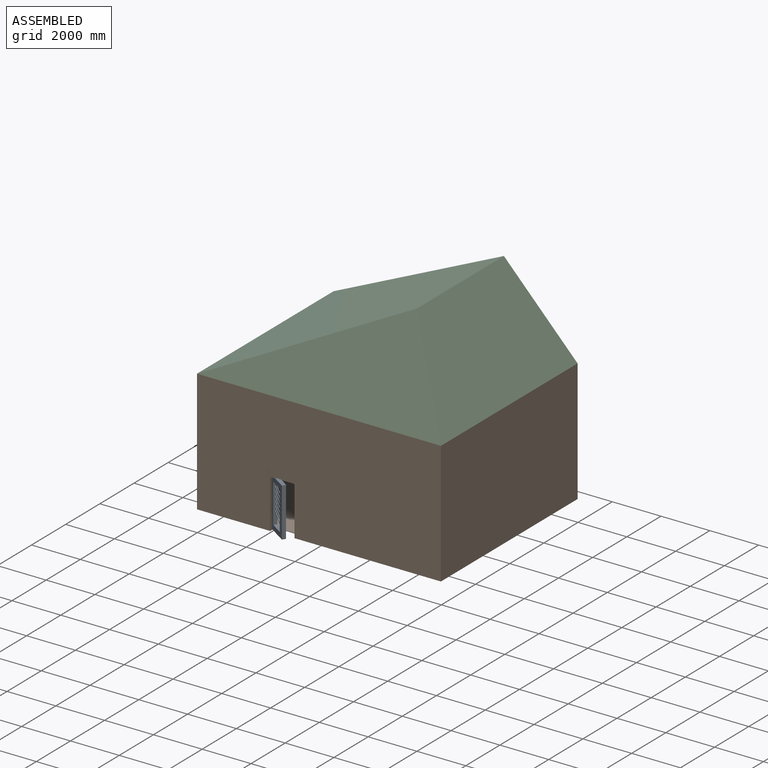
[diagram: assembled view]
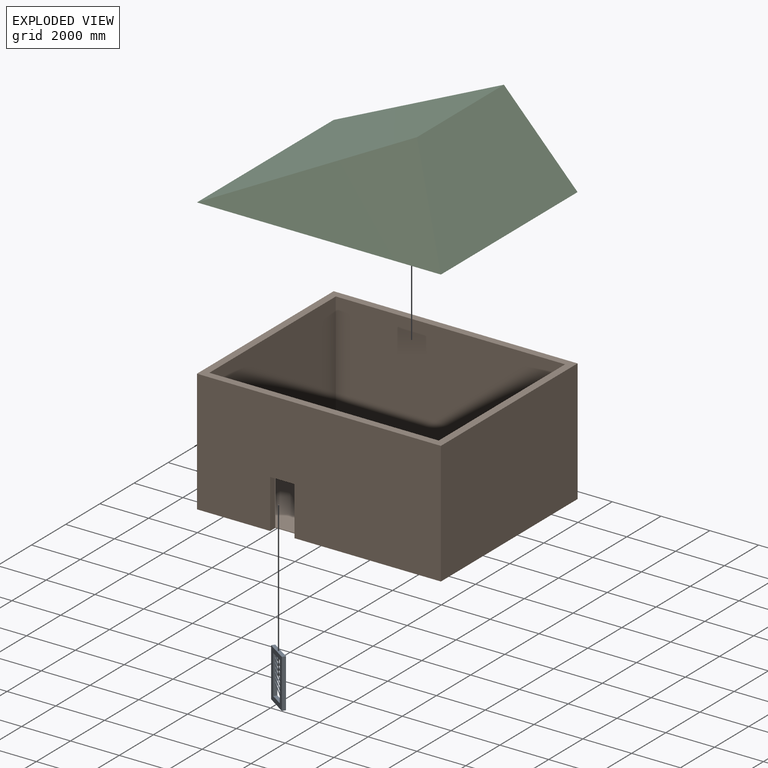
[diagram: exploded view]
GUIDED TOUR — MATED ASSEMBLY (Onshape document 355c7e82cdebf4fe1328f168, AutoMate assembly 355c7e82cdebf4fe1328f168_9fa5b39d5db73065056a9150_e65024e5a021f3d0e8b08cea_default)

This assembly has 3 components, labeled P0..P2 below (a component is one placed occurrence of a part; the same part can appear more than once), held together by 2 mates. A mate is a constraint between two components; its type names the relative motion it leaves free:
  FASTENED — locks the two components together rigidly (no relative motion),
  REVOLUTE — leaves rotation about the listed axis free (a hinge).
Axis/direction vectors are unit vectors and 'through' points are millimeter coordinates, both in the assembly's world frame.

MATES
  1. REVOLUTE "Revolute 1": P0 <-> P1, axis (0.000, 0.000, 1.000) through (-2005.65, -3714.49, 25.00) mm
  2. FASTENED "Fastened 2": P2 <-> P1, direction (0.000, 0.000, -1.000) through (-5005.65, -4014.49, 5025.00) mm

ASSEMBLY ORDER
  1. P1 — the base component [order verified]
  2. P0 [order verified]
  3. P2 [order verified]
Order-tag legend:
  [order verified] — this step's position reverses a verified removal order: the component was checked to insert without passing through the ones already placed.

Of the 3 components, 3 carry the full construction recipe — the FeatureScript program that regenerates the part's solid from scratch; the rest are supplied as boundary geometry only.
Each toured component is shown spotlighted twice — in the assembled view, then in the exploded view, where a leader line traces a displaced component back to its assembled socket (saturated green if recipe-attached, orange if geometry-only; every other component desaturated gray) — followed by its recipe or geometry summary and the mates that hold it.
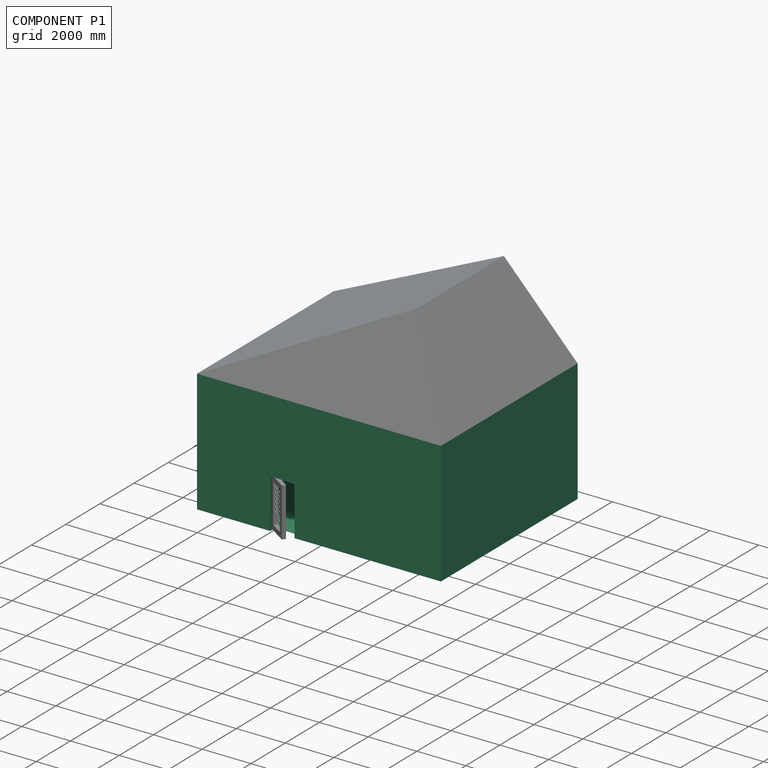
[diagram: component P1 — assembled]
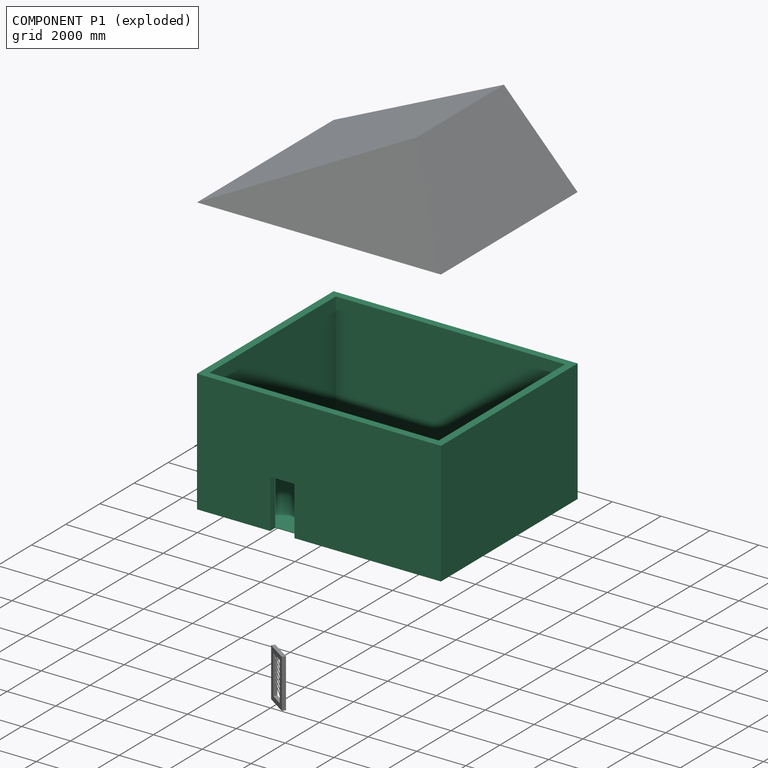
[diagram: component P1 — exploded]
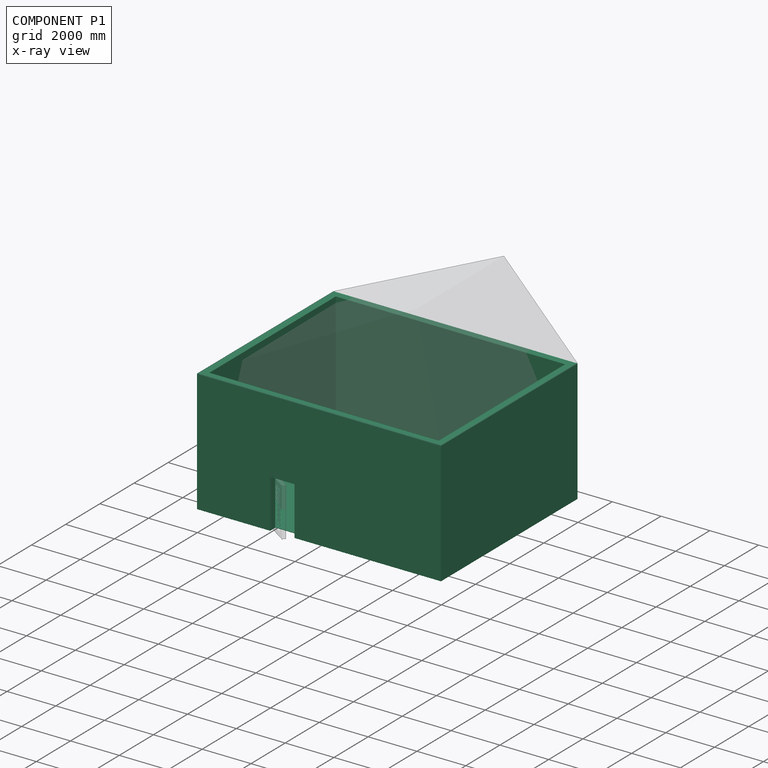
[diagram: component P1 — x-ray view]
COMPONENT P1 — recipe-attached (CADFS 00117687, mesh-verified: the recipe's output STEP matches this component's geometry to below the mesh-comparison resolution (tessellation chordal tolerance ~20.6 mm)).
Held by: REVOLUTE mate "Revolute 1" to P0; FASTENED mate "Fastened 2" to P2.
Construction recipe (FeatureScript — the CAD program that rebuilds this solid; sketch coordinates are in the units given by the * unit suffixes, e.g. mm):

FeatureScript 1511;
import(path : "onshape/std/geometry.fs", version : "1511.0");
import(path : "onshape/std/common.fs", version : "1511.0");
const mm = millimeter;
const VERTEX = EntityType.VERTEX;
const EDGE = EntityType.EDGE;
const FACE = EntityType.FACE;
const BODY = EntityType.BODY;
function v(x, y){return vector(x, y);}
function OD(order){return orderDisambiguation(order);}
function OSD(set){return originalSetDisambiguation(set);}
function TD(topology){return topologyDisambiguation(topology);}
function TDD(query){return trueDependencyDisambiguation(query);}
function sQuery(a, b, c) {return sketchEntityQuery(a, b, c);}

annotation { "Feature Type Name" : "Feature", "Feature Type Description" : "" }
export const myFeature = defineFeature(function(context is Context, id is Id, definition is map)
    precondition{}
    {
        {
            var Q0;
            Q0=qCreatedBy(makeId("Top.planeOp"),FACE);
            var sketch = newSketch(context, id + "F0", { "sketchPlane" : qUnion([Q0])});
            skLineSegment(sketch, "E0.bottom", {"start": v(5000, -4000) * mm, "end": v(-5000, -4000) * mm});
            skLineSegment(sketch, "E0.top", {"start": v(5000, 4000) * mm, "end": v(-5000, 4000) * mm});
            skLineSegment(sketch, "E0.left", {"start": v(5000, -4000) * mm, "end": v(5000, 4000) * mm});
            skLineSegment(sketch, "E0.right", {"start": v(-5000, -4000) * mm, "end": v(-5000, 4000) * mm});
            skPoint(sketch, "E0.middle", {"position": v(0, 0) * mm});
            skSolve(sketch);
        }
        {
            var Q0;
            Q0=makeQuery(id+"F0.imprint","IMPRINT",FACE,{"disambiguationData":[TD([[makeQuery(id+"F0.imprint","IMPRINT",EDGE,{"derivedFrom":sQuery(id+"F0.wireOp",EDGE,"E0.bottom")}),-1.0]])]});
            extrude(context, id + "F1", {"entities" : qUnion([Q0]), "depth" : 25 * mm});
        }
        {
            var Q0;
            Q0=makeQuery(id+"F1.opExtrude","CAP_FACE",FACE,{"disambiguationData":[OSD([sQuery(id+"F0.wireOp",EDGE,"E0.bottom"),sQuery(id+"F0.wireOp",EDGE,"E0.top"),sQuery(id+"F0.wireOp",EDGE,"E0.left"),sQuery(id+"F0.wireOp",EDGE,"E0.right")])],"isStart":false});
            var sketch = newSketch(context, id + "F2", { "sketchPlane" : qUnion([Q0])});
            skLineSegment(sketch, "E1.bottom", {"start": v(4700, -3700) * mm, "end": v(-4700, -3700) * mm});
            skLineSegment(sketch, "E1.top", {"start": v(4700, 3700) * mm, "end": v(-4700, 3700) * mm});
            skLineSegment(sketch, "E1.left", {"start": v(4700, -3700) * mm, "end": v(4700, 3700) * mm});
            skLineSegment(sketch, "E1.right", {"start": v(-4700, -3700) * mm, "end": v(-4700, 3700) * mm});
            skPoint(sketch, "E1.middle", {"position": v(0, 0) * mm});
            skSolve(sketch);
        }
        {
            var Q0;
            Q0=makeQuery(id+"F2.imprint","IMPRINT",FACE,{"disambiguationData":[TD([[makeQuery(id+"F2.imprint","IMPRINT",EDGE,{"derivedFrom":sQuery(id+"F2.wireOp",EDGE,"E1.bottom")}),1.0]])]});
            extrude(context, id + "F3", {"entities" : qUnion([Q0]), "operationType" : NewBodyOperationType.ADD, "depth" : 5000 * mm});
        }
        {
            var Q0;
            {var subQ0=sQuery(id+"F0.wireOp",EDGE,"E0.bottom");Q0=makeQuery(id+"F3.boolean.opBoolean","MERGE",FACE,{"derivedFrom":[makeQuery(id+"F1.opExtrude","SWEPT_FACE",FACE,{"disambiguationData":[OSD([subQ0])]}),makeQuery(id+"F3.opExtrude","SWEPT_FACE",FACE,{"disambiguationData":[OSD([subQ0])]})]});}
            var sketch = newSketch(context, id + "F4", { "sketchPlane" : qUnion([Q0])});
            skLineSegment(sketch, "E2.bottom", {"start": v(-2000, 0) * mm, "end": v(-1000, 0) * mm});
            skLineSegment(sketch, "E2.top", {"start": v(-2000, 2000) * mm, "end": v(-1000, 2000) * mm});
            skLineSegment(sketch, "E2.left", {"start": v(-2000, 0) * mm, "end": v(-2000, 2000) * mm});
            skLineSegment(sketch, "E2.right", {"start": v(-1000, 0) * mm, "end": v(-1000, 2000) * mm});
            skSolve(sketch);
        }
        {
            var Q0;
            Q0=makeQuery(id+"F4.imprint","IMPRINT",FACE,{"disambiguationData":[TD([[makeQuery(id+"F4.imprint","IMPRINT",EDGE,{"derivedFrom":sQuery(id+"F4.wireOp",EDGE,"E2.bottom")}),-1.0]])]});
            var Q1;
            Q1=makeQuery(id+"F3.opExtrude","SWEPT_FACE",FACE,{"disambiguationData":[OSD([sQuery(id+"F2.wireOp",EDGE,"E1.bottom")])]});
            extrude(context, id + "F5", {"entities" : qUnion([Q0]), "operationType" : NewBodyOperationType.REMOVE, "endBound" : BoundingType.UP_TO_SURFACE, "oppositeDirection" : true, "endBoundEntityFace" : qUnion([Q1]), "depth" : 25 * mm});
        }
    });
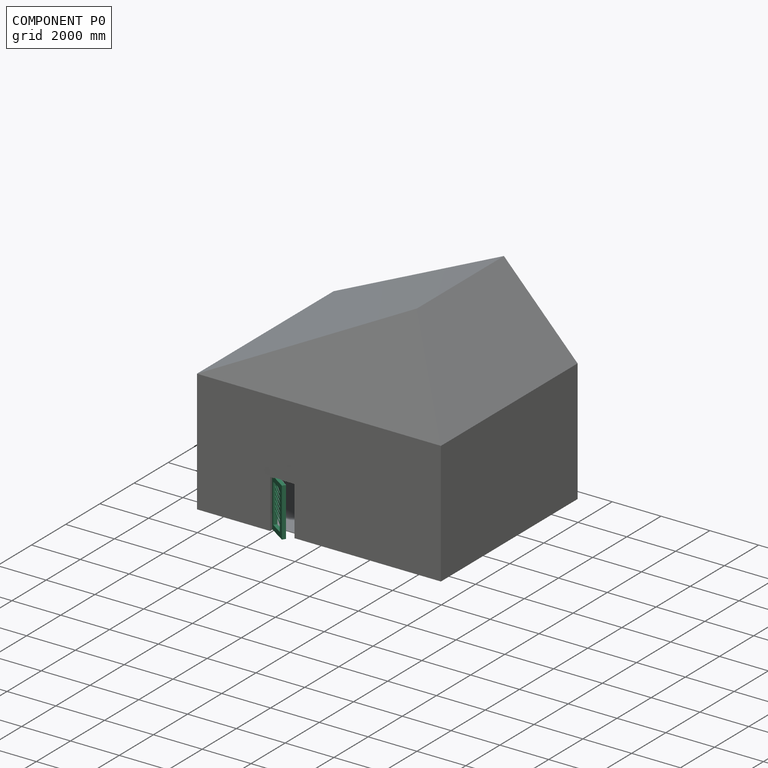
[diagram: component P0 — assembled]
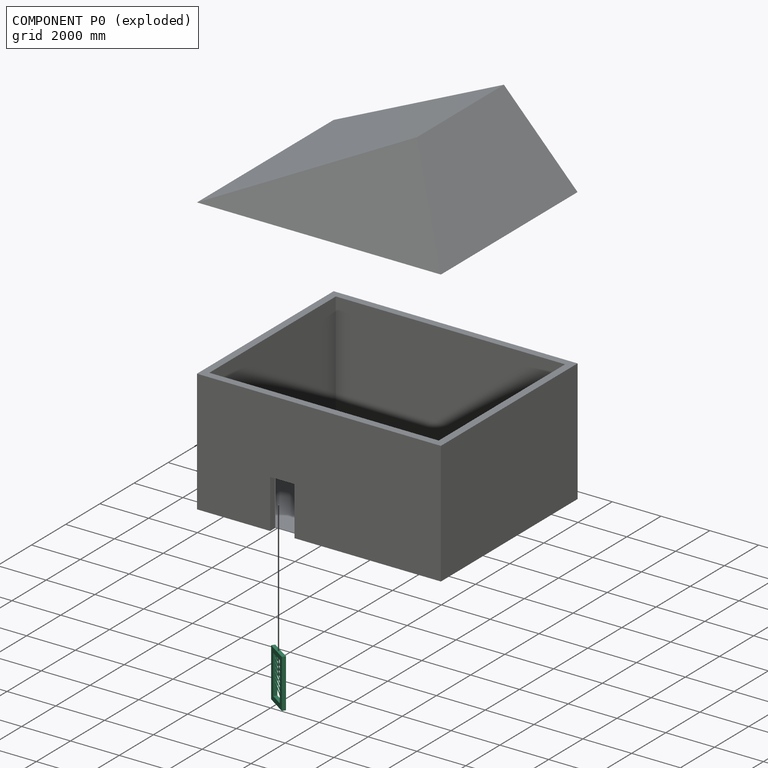
[diagram: component P0 — exploded]
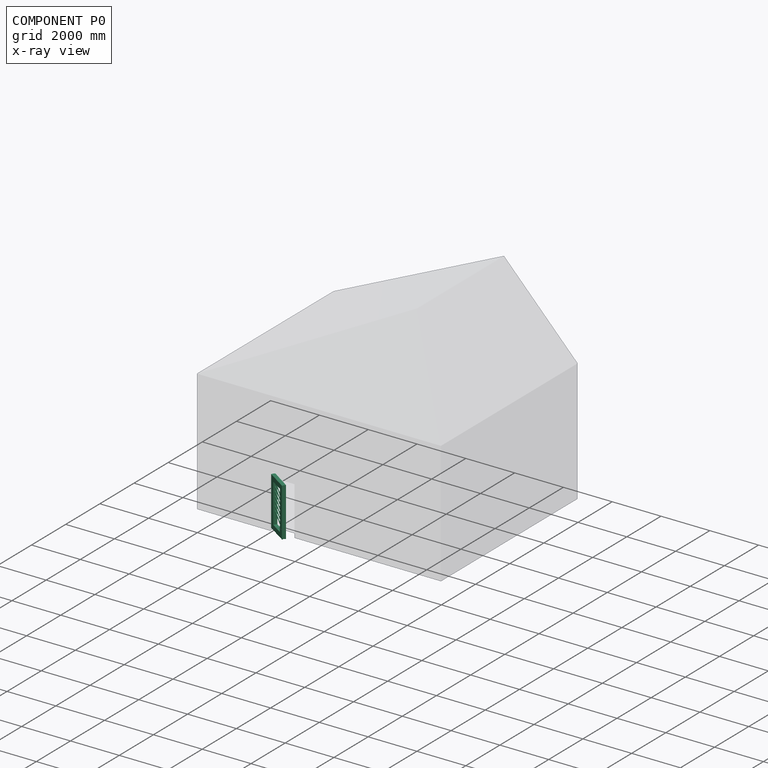
[diagram: component P0 — x-ray view]
COMPONENT P0 — recipe-attached (CADFS 00117688, mesh-verified: the recipe's output STEP matches this component's geometry to below the mesh-comparison resolution (tessellation chordal tolerance ~3.36 mm)).
Held by: REVOLUTE mate "Revolute 1" to P1.
Construction recipe (FeatureScript — the CAD program that rebuilds this solid; sketch coordinates are in the units given by the * unit suffixes, e.g. mm):

FeatureScript 1511;
import(path : "onshape/std/geometry.fs", version : "1511.0");
import(path : "onshape/std/common.fs", version : "1511.0");
const mm = millimeter;
const VERTEX = EntityType.VERTEX;
const EDGE = EntityType.EDGE;
const FACE = EntityType.FACE;
const BODY = EntityType.BODY;
function v(x, y){return vector(x, y);}
function OD(order){return orderDisambiguation(order);}
function OSD(set){return originalSetDisambiguation(set);}
function TD(topology){return topologyDisambiguation(topology);}
function TDD(query){return trueDependencyDisambiguation(query);}
function sQuery(a, b, c) {return sketchEntityQuery(a, b, c);}

annotation { "Feature Type Name" : "Feature", "Feature Type Description" : "" }
export const myFeature = defineFeature(function(context is Context, id is Id, definition is map)
    precondition{}
    {
        {
            var Q0;
            Q0=qCreatedBy(makeId("Front.planeOp"),FACE);
            var sketch = newSketch(context, id + "F0", { "sketchPlane" : qUnion([Q0])});
            skLineSegment(sketch, "E0.bottom", {"start": v(0, 0) * mm, "end": v(1000, 0) * mm});
            skLineSegment(sketch, "E0.top", {"start": v(0, 2000) * mm, "end": v(1000, 2000) * mm});
            skLineSegment(sketch, "E0.left", {"start": v(0, 0) * mm, "end": v(0, 2000) * mm});
            skLineSegment(sketch, "E0.right", {"start": v(1000, 0) * mm, "end": v(1000, 2000) * mm});
            skLineSegment(sketch, "E1.bottom", {"start": v(200, 200) * mm, "end": v(800, 200) * mm});
            skLineSegment(sketch, "E1.top", {"start": v(200, 1800) * mm, "end": v(800, 1800) * mm});
            skLineSegment(sketch, "E1.left", {"start": v(200, 200) * mm, "end": v(200, 1800) * mm});
            skLineSegment(sketch, "E1.right", {"start": v(800, 200) * mm, "end": v(800, 1800) * mm});
            skSolve(sketch);
        }
        {
            var Q0;
            Q0=makeQuery(id+"F0.imprint","IMPRINT",FACE,{"disambiguationData":[TD([[makeQuery(id+"F0.imprint","IMPRINT",EDGE,{"derivedFrom":sQuery(id+"F0.wireOp",EDGE,"E0.bottom")}),1.0]])]});
            extrude(context, id + "F1", {"entities" : qUnion([Q0]), "endBound" : BoundingType.SYMMETRIC, "depth" : 150 * mm});
        }
        {
            var Q0;
            Q0=qCreatedBy(makeId("Front.planeOp"),FACE);
            var sketch = newSketch(context, id + "F2", { "sketchPlane" : qUnion([Q0])});
            skLineSegment(sketch, "E2.0", {"start": v(200, 200) * mm, "end": v(200, 1800) * mm});
            skLineSegment(sketch, "E2.1", {"start": v(200, 1800) * mm, "end": v(800, 1800) * mm});
            skLineSegment(sketch, "E2.2", {"start": v(800, 200) * mm, "end": v(800, 1800) * mm});
            skLineSegment(sketch, "E2.3", {"start": v(200, 200) * mm, "end": v(800, 200) * mm});
            skLineSegment(sketch, "E3", {"start": v(200, 1750) * mm, "end": v(800, 1380) * mm});
            skLineSegment(sketch, "E4", {"start": v(800, 1430) * mm, "end": v(800, 1380) * mm});
            skLineSegment(sketch, "E5", {"start": v(800, 1430) * mm, "end": v(200, 1800) * mm});
            skLineSegment(sketch, "E6", {"start": v(200, 1750) * mm, "end": v(200, 1800) * mm});
            skLineSegment(sketch, "E7.1.0.0", {"start": v(200, 1570) * mm, "end": v(800, 1200) * mm});
            skLineSegment(sketch, "E7.1.0.1", {"start": v(800, 1250) * mm, "end": v(800, 1200) * mm});
            skLineSegment(sketch, "E7.1.0.2", {"start": v(200, 1570) * mm, "end": v(200, 1620) * mm});
            skLineSegment(sketch, "E7.1.0.3", {"start": v(800, 1250) * mm, "end": v(200, 1620) * mm});
            skLineSegment(sketch, "E7.2.0.0", {"start": v(200, 1390) * mm, "end": v(800, 1020) * mm});
            skLineSegment(sketch, "E7.2.0.1", {"start": v(800, 1070) * mm, "end": v(800, 1020) * mm});
            skLineSegment(sketch, "E7.2.0.2", {"start": v(200, 1390) * mm, "end": v(200, 1440) * mm});
            skLineSegment(sketch, "E7.2.0.3", {"start": v(800, 1070) * mm, "end": v(200, 1440) * mm});
            skLineSegment(sketch, "E7.3.0.0", {"start": v(200, 1210) * mm, "end": v(800, 840) * mm});
            skLineSegment(sketch, "E7.3.0.1", {"start": v(800, 890) * mm, "end": v(800, 840) * mm});
            skLineSegment(sketch, "E7.3.0.2", {"start": v(200, 1210) * mm, "end": v(200, 1260) * mm});
            skLineSegment(sketch, "E7.3.0.3", {"start": v(800, 890) * mm, "end": v(200, 1260) * mm});
            skLineSegment(sketch, "E7.4.0.0", {"start": v(200, 1030) * mm, "end": v(800, 660) * mm});
            skLineSegment(sketch, "E7.4.0.1", {"start": v(800, 710) * mm, "end": v(800, 660) * mm});
            skLineSegment(sketch, "E7.4.0.2", {"start": v(200, 1030) * mm, "end": v(200, 1080) * mm});
            skLineSegment(sketch, "E7.4.0.3", {"start": v(800, 710) * mm, "end": v(200, 1080) * mm});
            skLineSegment(sketch, "E7.direction1", {"start": v(200, 1800) * mm, "end": v(200, 1620) * mm, "construction": true});
            skLineSegment(sketch, "E8.0.5.0", {"start": v(200, 850) * mm, "end": v(800, 480) * mm});
            skLineSegment(sketch, "E8.3.5.0", {"start": v(800, 530) * mm, "end": v(800, 480) * mm});
            skLineSegment(sketch, "E8.6.5.0", {"start": v(200, 850) * mm, "end": v(200, 900) * mm});
            skLineSegment(sketch, "E8.9.5.0", {"start": v(800, 530) * mm, "end": v(200, 900) * mm});
            skLineSegment(sketch, "E8.0.6.0", {"start": v(200, 670) * mm, "end": v(800, 300) * mm});
            skLineSegment(sketch, "E8.3.6.0", {"start": v(800, 350) * mm, "end": v(800, 300) * mm});
            skLineSegment(sketch, "E8.6.6.0", {"start": v(200, 670) * mm, "end": v(200, 720) * mm});
            skLineSegment(sketch, "E8.9.6.0", {"start": v(800, 350) * mm, "end": v(200, 720) * mm});
            skSolve(sketch);
        }
        {
            var Q0;
            Q0=makeQuery(id+"F2.imprint","IMPRINT",FACE,{"disambiguationData":[TD([[makeQuery(id+"F2.imprint","IMPRINT",EDGE,{"derivedFrom":sQuery(id+"F2.wireOp",EDGE,"E3")}),1.0]])]});
            var Q1;
            Q1=makeQuery(id+"F2.imprint","IMPRINT",FACE,{"disambiguationData":[TD([[makeQuery(id+"F2.imprint","IMPRINT",EDGE,{"derivedFrom":sQuery(id+"F2.wireOp",EDGE,"E7.1.0.0")}),1.0]])]});
            var Q2;
            Q2=makeQuery(id+"F2.imprint","IMPRINT",FACE,{"disambiguationData":[TD([[makeQuery(id+"F2.imprint","IMPRINT",EDGE,{"derivedFrom":sQuery(id+"F2.wireOp",EDGE,"E7.2.0.0")}),1.0]])]});
            var Q3;
            Q3=makeQuery(id+"F2.imprint","IMPRINT",FACE,{"disambiguationData":[TD([[makeQuery(id+"F2.imprint","IMPRINT",EDGE,{"derivedFrom":sQuery(id+"F2.wireOp",EDGE,"E7.3.0.0")}),1.0]])]});
            var Q4;
            Q4=makeQuery(id+"F2.imprint","IMPRINT",FACE,{"disambiguationData":[TD([[makeQuery(id+"F2.imprint","IMPRINT",EDGE,{"derivedFrom":sQuery(id+"F2.wireOp",EDGE,"E7.4.0.0")}),1.0]])]});
            var Q5;
            Q5=makeQuery(id+"F2.imprint","IMPRINT",FACE,{"disambiguationData":[TD([[makeQuery(id+"F2.imprint","IMPRINT",EDGE,{"derivedFrom":sQuery(id+"F2.wireOp",EDGE,"E8.0.5.0")}),1.0]])]});
            var Q6;
            Q6=makeQuery(id+"F2.imprint","IMPRINT",FACE,{"disambiguationData":[TD([[makeQuery(id+"F2.imprint","IMPRINT",EDGE,{"derivedFrom":sQuery(id+"F2.wireOp",EDGE,"E8.0.6.0")}),1.0]])]});
            extrude(context, id + "F3", {"entities" : qUnion([Q0, Q1, Q2, Q3, Q4, Q5, Q6]), "operationType" : NewBodyOperationType.ADD, "endBound" : BoundingType.SYMMETRIC, "depth" : 25 * mm});
        }
    });
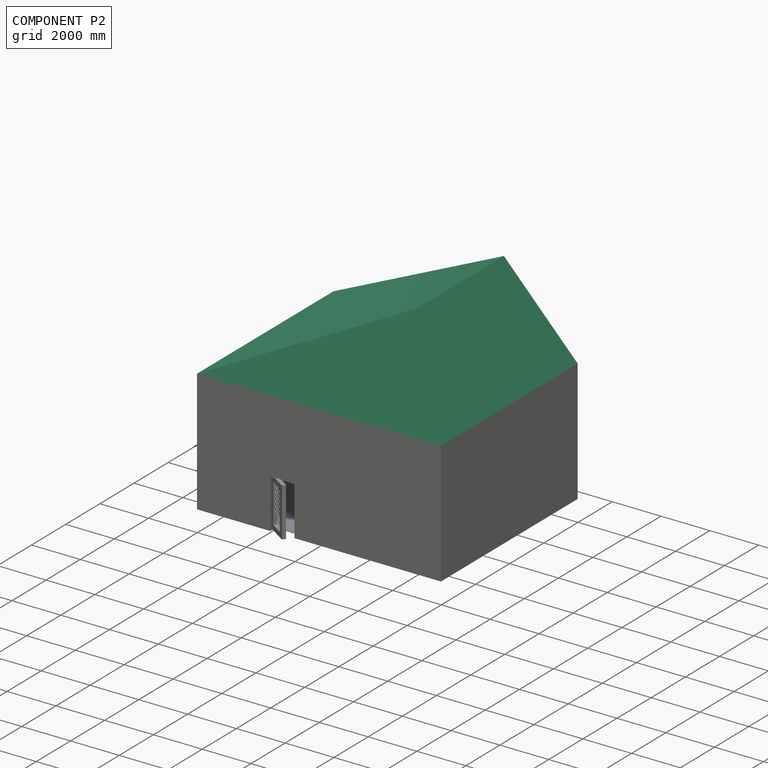
[diagram: component P2 — assembled]
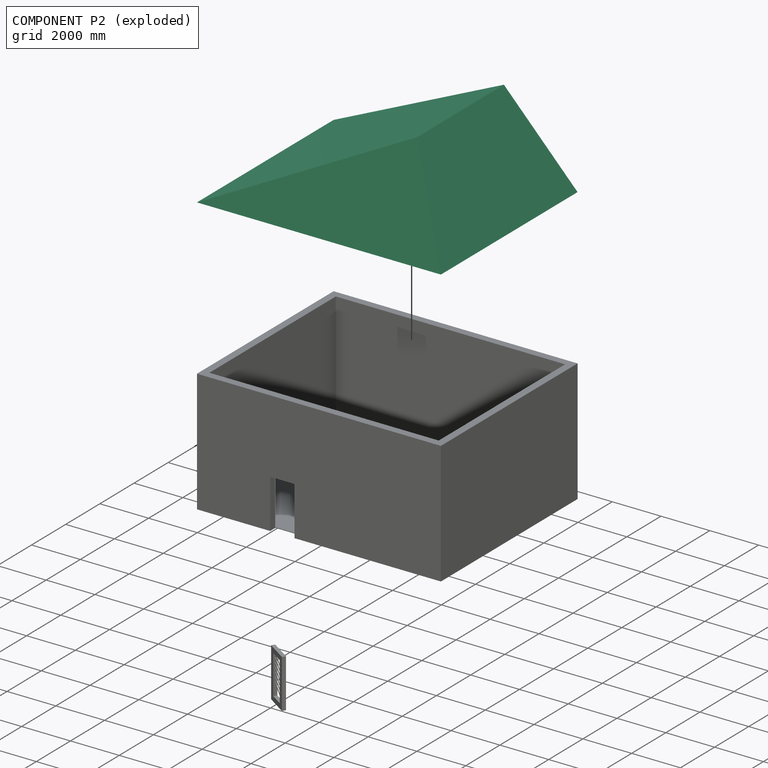
[diagram: component P2 — exploded]
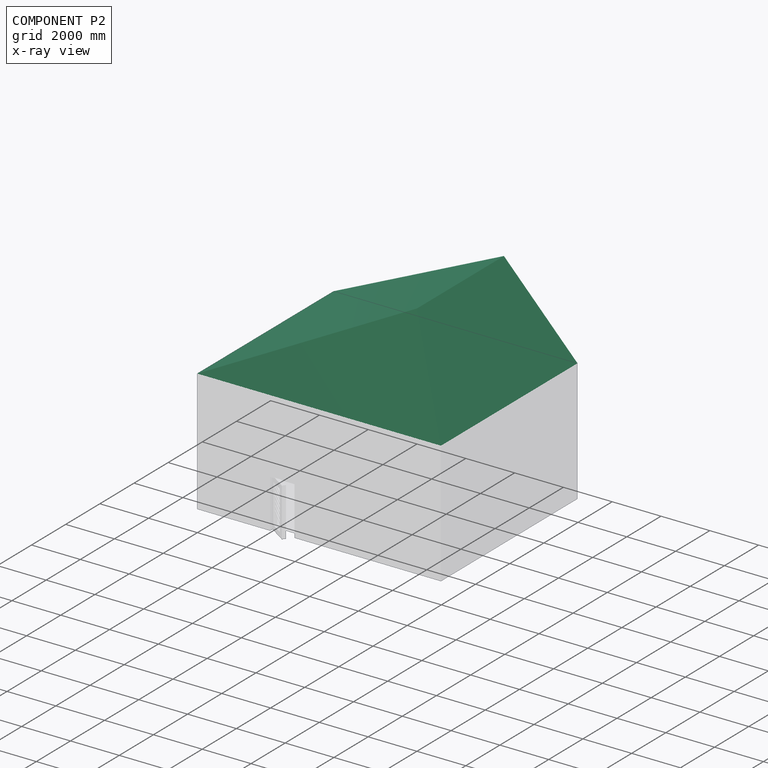
[diagram: component P2 — x-ray view]
COMPONENT P2 — recipe-attached (CADFS 00117689, mesh-verified: the recipe's output STEP matches this component's geometry to below the mesh-comparison resolution (tessellation chordal tolerance ~20.1 mm)).
Held by: FASTENED mate "Fastened 2" to P1.
Construction recipe (FeatureScript — the CAD program that rebuilds this solid; sketch coordinates are in the units given by the * unit suffixes, e.g. mm):

FeatureScript 1511;
import(path : "onshape/std/geometry.fs", version : "1511.0");
import(path : "onshape/std/common.fs", version : "1511.0");
const mm = millimeter;
const VERTEX = EntityType.VERTEX;
const EDGE = EntityType.EDGE;
const FACE = EntityType.FACE;
const BODY = EntityType.BODY;
function v(x, y){return vector(x, y);}
function OD(order){return orderDisambiguation(order);}
function OSD(set){return originalSetDisambiguation(set);}
function TD(topology){return topologyDisambiguation(topology);}
function TDD(query){return trueDependencyDisambiguation(query);}
function sQuery(a, b, c) {return sketchEntityQuery(a, b, c);}

annotation { "Feature Type Name" : "Feature", "Feature Type Description" : "" }
export const myFeature = defineFeature(function(context is Context, id is Id, definition is map)
    precondition{}
    {
        {
            var Q0;
            Q0=qCreatedBy(makeId("Front.planeOp"),FACE);
            var sketch = newSketch(context, id + "F0", { "sketchPlane" : qUnion([Q0])});
            skLineSegment(sketch, "E0", {"start": v(-5000, 0) * mm, "end": v(5000, 0) * mm});
            skLineSegment(sketch, "E1", {"start": v(5000, 0) * mm, "end": v(3000, 4000) * mm});
            skLineSegment(sketch, "E2", {"start": v(3000, 4000) * mm, "end": v(-5000, 0) * mm});
            skSolve(sketch);
        }
        {
            var Q0;
            Q0=makeQuery(id+"F0.imprint","IMPRINT",FACE,{"disambiguationData":[TD([[makeQuery(id+"F0.imprint","IMPRINT",EDGE,{"derivedFrom":sQuery(id+"F0.wireOp",EDGE,"E0")}),1.0]])]});
            extrude(context, id + "F1", {"entities" : qUnion([Q0]), "depth" : 8000 * mm});
        }
        {
            var Q0;
            Q0=qCreatedBy(makeId("Right.planeOp"),FACE);
            var sketch = newSketch(context, id + "F2", { "sketchPlane" : qUnion([Q0])});
            skLineSegment(sketch, "E3.0.0", {"start": v(0, 4000) * mm, "end": v(0, 0) * mm});
            skLineSegment(sketch, "E3.0.1", {"start": v(0, 0) * mm, "end": v(-8000, 0) * mm, "construction": true});
            skLineSegment(sketch, "E3.0.2", {"start": v(-8000, 0) * mm, "end": v(-8000, 4000) * mm});
            skLineSegment(sketch, "E3.0.3", {"start": v(-8000, 4000) * mm, "end": v(0, 4000) * mm});
            skLineSegment(sketch, "E4", {"start": v(0, 0) * mm, "end": v(-1455.88, 4000) * mm});
            skLineSegment(sketch, "E5", {"start": v(-8000, 0) * mm, "end": v(-6544.12, 4000) * mm});
            skSolve(sketch);
        }
        {
            var Q0;
            {var subQ0=sQuery(id+"F2.wireOp",EDGE,"E3.0.0");Q0=makeQuery(id+"F2.imprint","IMPRINT",FACE,{"disambiguationData":[TD([[makeQuery(id+"F2.imprint","IMPRINT",EDGE,{"derivedFrom":subQ0}),-1.0]])]});}
            var Q1;
            {var subQ0=sQuery(id+"F2.wireOp",EDGE,"E3.0.2");Q1=makeQuery(id+"F2.imprint","IMPRINT",FACE,{"disambiguationData":[TD([[makeQuery(id+"F2.imprint","IMPRINT",EDGE,{"derivedFrom":subQ0}),-1.0]])]});}
            extrude(context, id + "F3", {"entities" : qUnion([Q0, Q1]), "operationType" : NewBodyOperationType.REMOVE, "endBound" : BoundingType.THROUGH_ALL, "oppositeDirection" : true, "depth" : 25 * mm, "hasSecondDirection" : true, "secondDirectionBound" : SecondDirectionBoundingType.THROUGH_ALL, "secondDirectionOppositeDirection" : false, "secondDirectionDepth" : 25 * mm});
        }
    });
PROVENANCE & LICENSES
Assembly (occurrences, transforms, mates, per-part STEP geometry): AutoMate dataset, Zenodo record 7776208, CC0.
Construction recipes: CADFS (HuggingFace VladPyatov/CADFS, CC-BY-4.0, layered over the ABC dataset), FeatureScript reconstruction programs keyed by ABC model id.
Join: ABC meta listings map ABC model id -> Onshape documentId; within a shared document, parts are matched by geometric signature (bounding-box dims + volume at 0.1% relative tolerance, exact B-rep face/solid counts).
Verification: 3 of this assembly's 3 components carry a recipe attachment, and every attachment is mesh-verified: the CADFS STEP and the AutoMate member STEP were compared as meshes in their shared local frame (symmetric sampled-point-to-mesh distance); worst across the 3 attachments: below the mesh-comparison resolution (tessellation chordal tolerance ~20.6 mm) on a 13757 mm part.
Renders: orthographic iso camera (az 35 / el 25); the floor grid conveys scale (grid pitch printed in each image; no ruler). In the exploded view each component is displaced by its stored offset vector: the offsets alone carry the explosion direction (mate normal/axis signs are not orientation cues and do not encode it), and separation distances are assigned per mate-chain, not proportionally to assembly-order depth.
